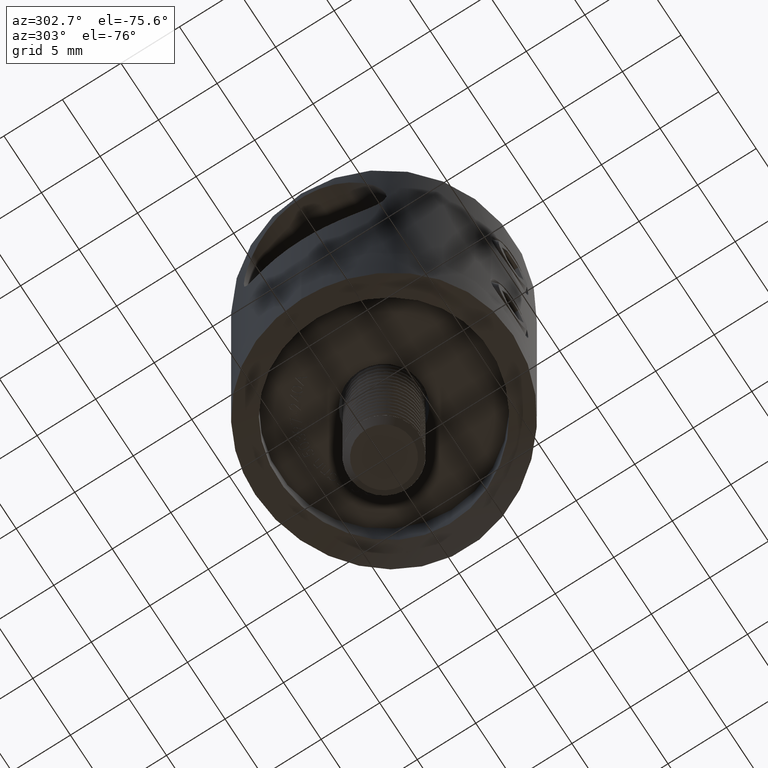
[diagram: clean part render]
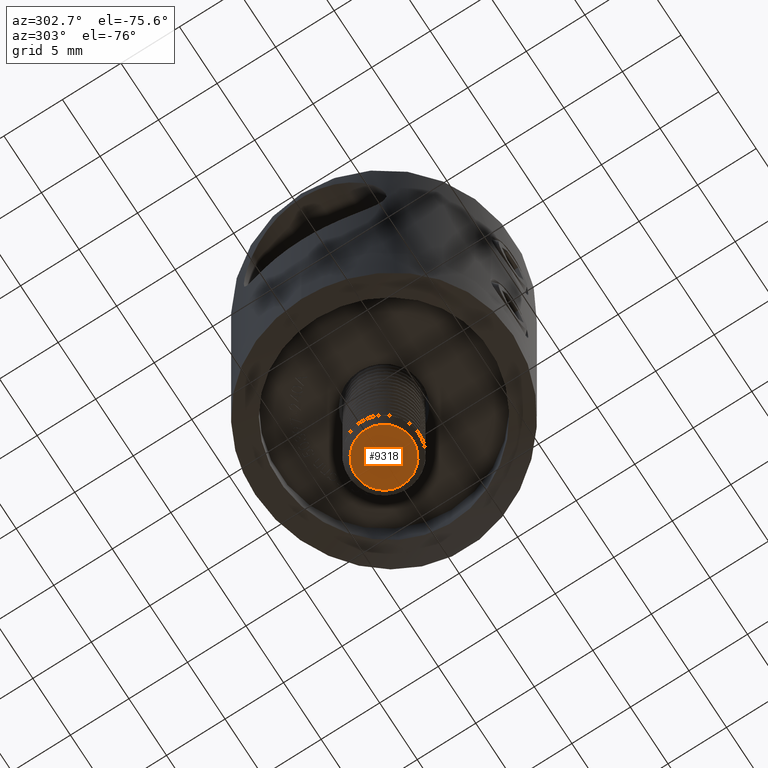
[diagram: same view with one face highlighted and labeled with its STEP entity id]
A machine part, auxiliary view. The second image highlights one B-rep face of the part: STEP entity #9318.
In plain terms, the highlighted planar face has unit normal (0, 0, -1).
Its self-contained STEP definition (entity closure, byte-faithful):
#1010 = AXIS2_PLACEMENT_3D ( 'NONE', #13115, #2721, #16699 ) ;
#2721 = DIRECTION ( 'NONE',  ( 1.000000000000000000, 0.0000000000000000000, 0.0000000000000000000 ) ) ;
#5686 = DIRECTION ( 'NONE',  ( -1.000000000000000000, -0.0000000000000000000, -0.0000000000000000000 ) ) ;
#8210 = PLANE ( 'NONE',  #1010 ) ;
#8800 = FACE_OUTER_BOUND ( 'NONE', #10049, .T. ) ;
#8880 = CARTESIAN_POINT ( 'NONE',  ( 25.00000000000000000, 0.0000000000000000000, 0.0000000000000000000 ) ) ;
#9318 = ADVANCED_FACE ( 'NONE', ( #8800 ), #8210, .T. ) ;
#10049 = EDGE_LOOP ( 'NONE', ( #18524 ) ) ;
#13115 = CARTESIAN_POINT ( 'NONE',  ( 25.00000000000000000, 2.445500000000000000, 0.0000000000000000000 ) ) ;
#15009 = AXIS2_PLACEMENT_3D ( 'NONE', #8880, #5686, #15998 ) ;
#15998 = DIRECTION ( 'NONE',  ( 0.0000000000000000000, 0.0000000000000000000, 1.000000000000000000 ) ) ;
#16699 = DIRECTION ( 'NONE',  ( 0.0000000000000000000, 0.0000000000000000000, -1.000000000000000000 ) ) ;
#16985 = CARTESIAN_POINT ( 'NONE',  ( 25.00000000000000000, 0.0000000000000000000, 2.445500000000000000 ) ) ;
#17472 = CIRCLE ( 'NONE', #15009, 2.445500000000000000 ) ;
#18002 = EDGE_CURVE ( 'NONE', #18186, #18186, #17472, .T. ) ;
#18186 = VERTEX_POINT ( 'NONE', #16985 ) ;
#18524 = ORIENTED_EDGE ( 'NONE', *, *, #18002, .F. ) ;